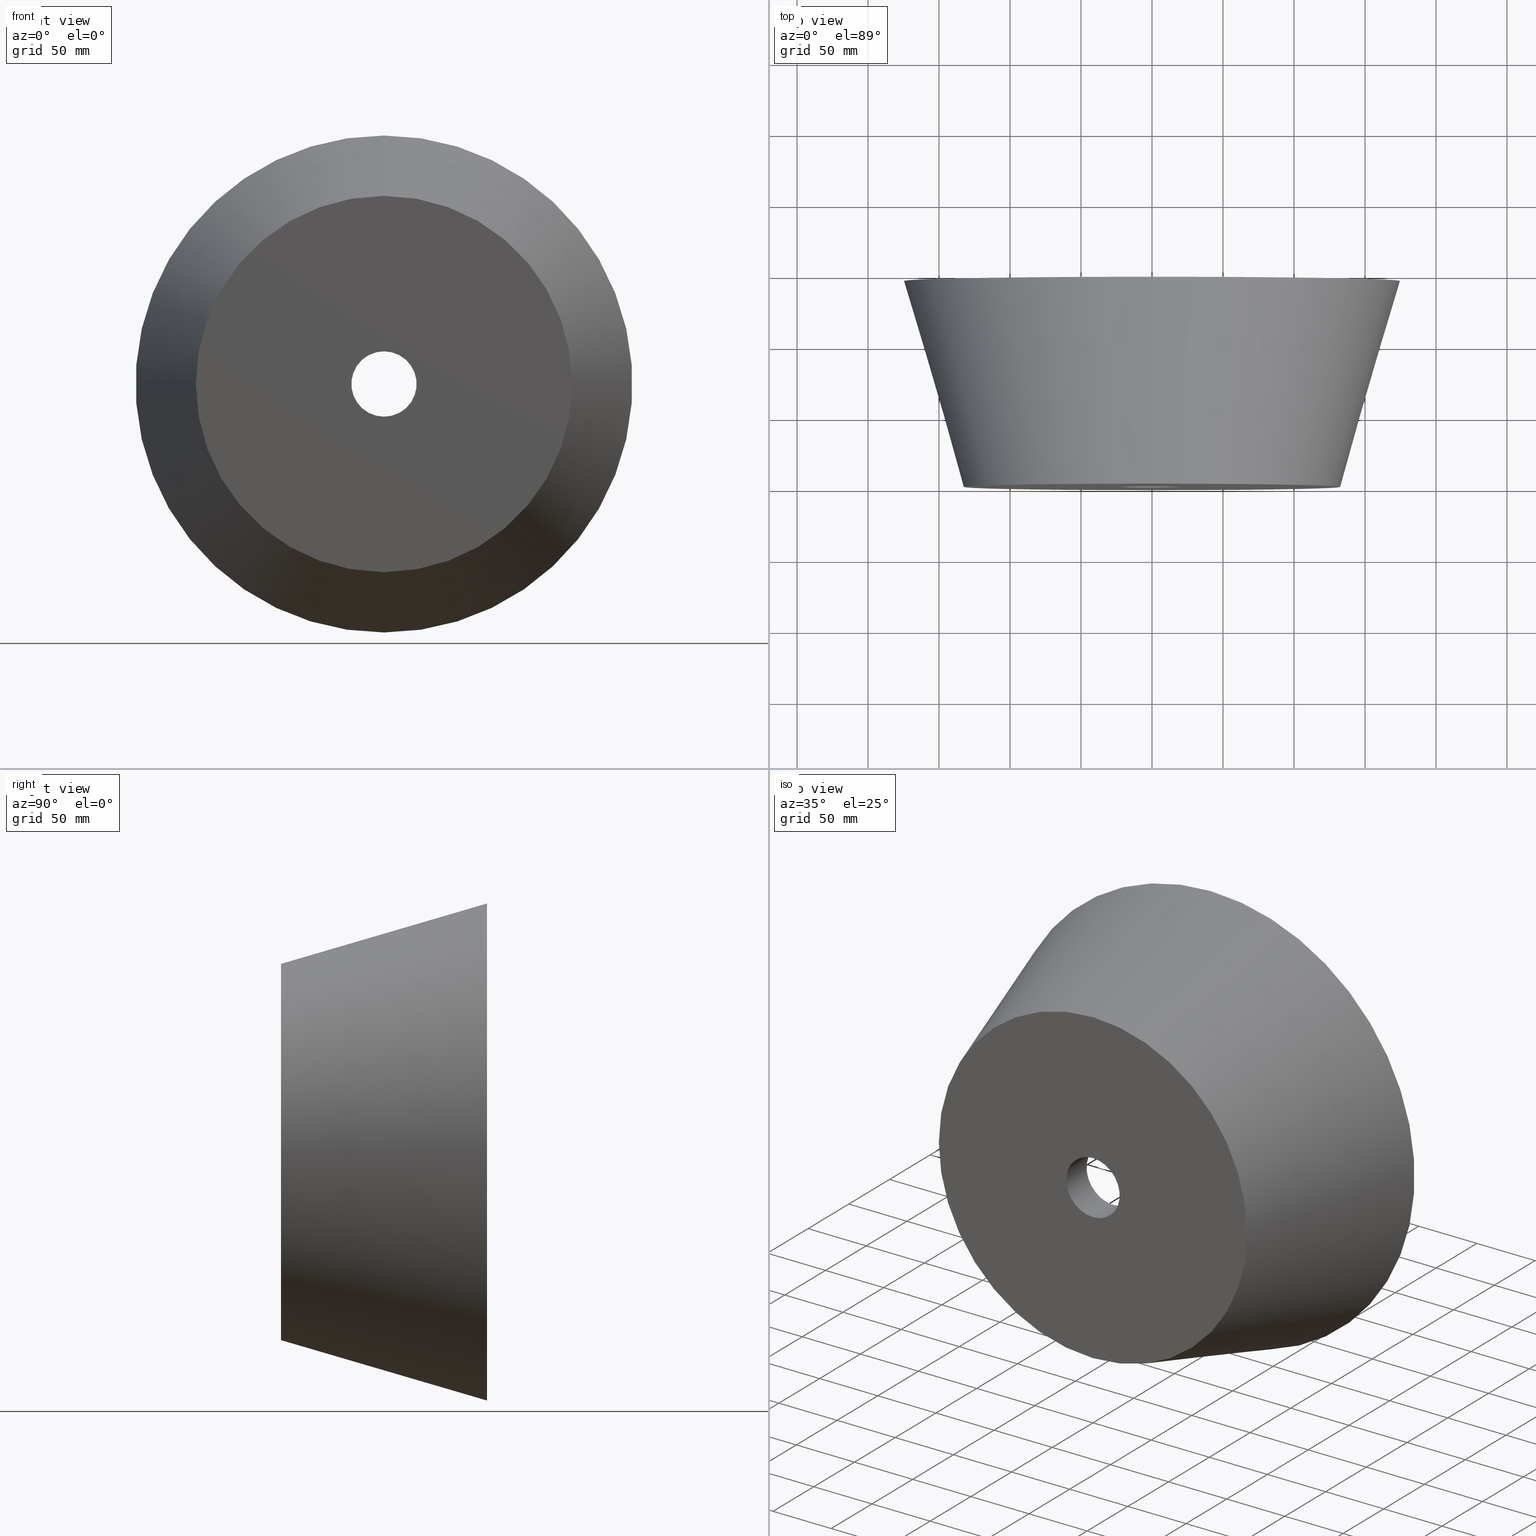
[diagram: canonical four-view strip — front | top / right | iso, engineering-drawing reading convention]
A machine part, canonical four-view strip (front | top / right | iso — engineering-drawing reading convention). The complete STEP part file that produces these views, byte-faithful:
ISO-10303-21;
HEADER;
FILE_DESCRIPTION (( 'STEP AP214' ),
    '1' );
FILE_NAME ('D601.STEP',
    '2018-09-14T08:24:21',
    ( 'User' ),
    ( '' ),
    'SwSTEP 2.0',
    'SolidWorks 2017',
    '' );
FILE_SCHEMA (( 'AUTOMOTIVE_DESIGN' ));
ENDSEC;

DATA;
#1 = EDGE_LOOP ( 'NONE', ( #250, #229 ) ) ;
#2 = ORIENTED_EDGE ( 'NONE', *, *, #331, .T. ) ;
#3 = CARTESIAN_POINT ( 'NONE',  ( 0.0000000000000000000, 25.00000000000001400, 0.0000000000000000000 ) ) ;
#4 = PRODUCT_CONTEXT ( 'NONE', #273, 'mechanical' ) ;
#5 =( GEOMETRIC_REPRESENTATION_CONTEXT ( 3 ) GLOBAL_UNCERTAINTY_ASSIGNED_CONTEXT ( ( #248 ) ) GLOBAL_UNIT_ASSIGNED_CONTEXT ( ( #21, #86, #17 ) ) REPRESENTATION_CONTEXT ( 'NONE', 'WORKASPACE' ) );
#6 = SURFACE_SIDE_STYLE ('',( #25 ) ) ;
#7 = LINE ( 'NONE', #65, #258 ) ;
#8 = FACE_OUTER_BOUND ( 'NONE', #27, .T. ) ;
#9 = AXIS2_PLACEMENT_3D ( 'NONE', #213, #216, #217 ) ;
#10 = VERTEX_POINT ( 'NONE', #46 ) ;
#11 = AXIS2_PLACEMENT_3D ( 'NONE', #272, #89, #288 ) ;
#12 = DIRECTION ( 'NONE',  ( 3.444569382563940100E-017, 0.9596285438852135700, -0.2812704352767004800 ) ) ;
#13 = CYLINDRICAL_SURFACE ( 'NONE', #9, 23.00000000000000000 ) ;
#14 = CIRCLE ( 'NONE', #164, 132.5000000000000000 ) ;
#15 = DIRECTION ( 'NONE',  ( 0.0000000000000000000, 0.0000000000000000000, -1.000000000000000000 ) ) ;
#16 = DIRECTION ( 'NONE',  ( -0.0000000000000000000, -1.000000000000000000, -0.0000000000000000000 ) ) ;
#17 =( NAMED_UNIT ( * ) SI_UNIT ( $, .STERADIAN. ) SOLID_ANGLE_UNIT ( ) );
#18 = AXIS2_PLACEMENT_3D ( 'NONE', #43, #188, #238 ) ;
#19 = CARTESIAN_POINT ( 'NONE',  ( 2.143131898507867900E-014, 144.9999999999999400, -175.0000000000000000 ) ) ;
#20 = VERTEX_POINT ( 'NONE', #88 ) ;
#21 =( LENGTH_UNIT ( ) NAMED_UNIT ( * ) SI_UNIT ( .MILLI., .METRE. ) );
#22 = AXIS2_PLACEMENT_3D ( 'NONE', #41, #177, #15 ) ;
#23 = ADVANCED_FACE ( 'NONE', ( #306 ), #263, .F. ) ;
#24 = CIRCLE ( 'NONE', #68, 175.0000000000000000 ) ;
#25 = SURFACE_STYLE_FILL_AREA ( #67 ) ;
#26 = CARTESIAN_POINT ( 'NONE',  ( 0.0000000000000000000, 33.00000000000006400, 0.0000000000000000000 ) ) ;
#27 = EDGE_LOOP ( 'NONE', ( #322, #58, #275, #116 ) ) ;
#28 = AXIS2_PLACEMENT_3D ( 'NONE', #311, #240, #128 ) ;
#29 = APPLICATION_CONTEXT ( 'automotive_design' ) ;
#30 = CARTESIAN_POINT ( 'NONE',  ( 0.0000000000000000000, 144.9999999999999700, -160.0000000000000600 ) ) ;
#31 = DIRECTION ( 'NONE',  ( 0.0000000000000000000, 0.7071067811865496800, 0.7071067811865453500 ) ) ;
#32 = ADVANCED_BREP_SHAPE_REPRESENTATION ( 'D601', ( #184, #231 ), #40 ) ;
#33 = ORIENTED_EDGE ( 'NONE', *, *, #160, .F. ) ;
#34 = CARTESIAN_POINT ( 'NONE',  ( 2.816687638038912400E-015, 25.00000000000001400, 23.00000000000000000 ) ) ;
#35 = TOROIDAL_SURFACE ( 'NONE', #126, 6.803146923017686200, 160.0000000000002000 ) ;
#36 = PRESENTATION_LAYER_ASSIGNMENT (  '', '', ( #289 ) ) ;
#37 = DIRECTION ( 'NONE',  ( 0.0000000000000000000, -0.0000000000000000000, 1.000000000000000000 ) ) ;
#38 = ORIENTED_EDGE ( 'NONE', *, *, #307, .T. ) ;
#39 = AXIS2_PLACEMENT_3D ( 'NONE', #241, #283, #37 ) ;
#40 =( GEOMETRIC_REPRESENTATION_CONTEXT ( 3 ) GLOBAL_UNCERTAINTY_ASSIGNED_CONTEXT ( ( #47 ) ) GLOBAL_UNIT_ASSIGNED_CONTEXT ( ( #129, #202, #204 ) ) REPRESENTATION_CONTEXT ( 'NONE', 'WORKASPACE' ) );
#41 = CARTESIAN_POINT ( 'NONE',  ( 0.0000000000000000000, 191.1597682761677100, 0.0000000000000000000 ) ) ;
#42 = EDGE_LOOP ( 'NONE', ( #139, #179, #63, #247 ) ) ;
#43 = CARTESIAN_POINT ( 'NONE',  ( 0.0000000000000000000, 144.9999999999999700, 0.0000000000000000000 ) ) ;
#44 = DIRECTION ( 'NONE',  ( 0.0000000000000000000, 0.0000000000000000000, 1.000000000000000000 ) ) ;
#45 = AXIS2_PLACEMENT_3D ( 'NONE', #26, #330, #108 ) ;
#46 = CARTESIAN_POINT ( 'NONE',  ( 2.143131898507867900E-014, 144.9999999999999400, -175.0000000000000000 ) ) ;
#47 = UNCERTAINTY_MEASURE_WITH_UNIT (LENGTH_MEASURE( 1.000000000000000100E-005 ), #129, 'distance_accuracy_value', 'NONE');
#48 = DIRECTION ( 'NONE',  ( -0.0000000000000000000, -1.000000000000000000, -0.0000000000000000000 ) ) ;
#49 = FILL_AREA_STYLE ('',( #112 ) ) ;
#50 = VERTEX_POINT ( 'NONE', #115 ) ;
#51 = EDGE_LOOP ( 'NONE', ( #80, #173, #2, #327 ) ) ;
#52 = PRESENTATION_STYLE_ASSIGNMENT (( #269 ) ) ;
#53 = AXIS2_PLACEMENT_3D ( 'NONE', #329, #225, #97 ) ;
#54 = CARTESIAN_POINT ( 'NONE',  ( 0.0000000000000000000, 33.00000000000006400, 0.0000000000000000000 ) ) ;
#55 = SURFACE_STYLE_USAGE ( .BOTH. , #6 ) ;
#56 = FACE_BOUND ( 'NONE', #237, .T. ) ;
#57 = AXIS2_PLACEMENT_3D ( 'NONE', #176, #148, #259 ) ;
#58 = ORIENTED_EDGE ( 'NONE', *, *, #251, .T. ) ;
#59 = ADVANCED_FACE ( 'NONE', ( #62 ), #76, .T. ) ;
#60 = VECTOR ( 'NONE', #165, 1000.000000000000000 ) ;
#61 = DIRECTION ( 'NONE',  ( 0.0000000000000000000, 0.0000000000000000000, -1.000000000000000000 ) ) ;
#62 = FACE_OUTER_BOUND ( 'NONE', #137, .T. ) ;
#63 = ORIENTED_EDGE ( 'NONE', *, *, #233, .T. ) ;
#64 = DIRECTION ( 'NONE',  ( 1.000000000000000000, 0.0000000000000000000, 0.0000000000000000000 ) ) ;
#65 = CARTESIAN_POINT ( 'NONE',  ( 0.0000000000000000000, 0.0000000000000000000, -23.00000000000000000 ) ) ;
#66 = ORIENTED_EDGE ( 'NONE', *, *, #120, .T. ) ;
#67 = FILL_AREA_STYLE ('',( #102 ) ) ;
#68 = AXIS2_PLACEMENT_3D ( 'NONE', #169, #48, #297 ) ;
#69 = CIRCLE ( 'NONE', #274, 23.00000000000000400 ) ;
#70 = VECTOR ( 'NONE', #31, 1000.000000000000000 ) ;
#71 = EDGE_LOOP ( 'NONE', ( #38, #133 ) ) ;
#72 = SHAPE_DEFINITION_REPRESENTATION ( #310, #32 ) ;
#73 = PRODUCT_RELATED_PRODUCT_CATEGORY ( 'part', '', ( #303 ) ) ;
#74 = CARTESIAN_POINT ( 'NONE',  ( 0.0000000000000000000, 144.9999999999999400, 175.0000000000000000 ) ) ;
#75 =( NAMED_UNIT ( * ) PLANE_ANGLE_UNIT ( ) SI_UNIT ( $, .RADIAN. ) );
#76 = CONICAL_SURFACE ( 'NONE', #305, 175.0000000000000000, 0.2851177351725961400 ) ;
#77 = DIRECTION ( 'NONE',  ( -0.0000000000000000000, -1.000000000000000000, -0.0000000000000000000 ) ) ;
#78 = ADVANCED_FACE ( 'NONE', ( #281 ), #210, .F. ) ;
#79 = EDGE_CURVE ( 'NONE', #253, #286, #270, .T. ) ;
#80 = ORIENTED_EDGE ( 'NONE', *, *, #255, .F. ) ;
#81 = SURFACE_STYLE_FILL_AREA ( #49 ) ;
#82 = ADVANCED_FACE ( 'NONE', ( #56, #212 ), #243, .F. ) ;
#83 = LINE ( 'NONE', #134, #242 ) ;
#84 = CIRCLE ( 'NONE', #57, 23.00000000000000000 ) ;
#85 = DIRECTION ( 'NONE',  ( -1.000000000000000000, 0.0000000000000000000, 0.0000000000000000000 ) ) ;
#86 =( NAMED_UNIT ( * ) PLANE_ANGLE_UNIT ( ) SI_UNIT ( $, .RADIAN. ) );
#87 = EDGE_CURVE ( 'NONE', #98, #90, #190, .T. ) ;
#88 = CARTESIAN_POINT ( 'NONE',  ( 1.169537693185723300E-014, 33.00000000000006400, 31.00000000000000000 ) ) ;
#89 = DIRECTION ( 'NONE',  ( 0.0000000000000000000, 1.000000000000000000, 0.0000000000000000000 ) ) ;
#90 = VERTEX_POINT ( 'NONE', #220 ) ;
#91 = PRODUCT_DEFINITION_FORMATION_WITH_SPECIFIED_SOURCE ( 'ANY', '', #303, .NOT_KNOWN. ) ;
#92 = ADVANCED_FACE ( 'NONE', ( #8 ), #136, .F. ) ;
#93 = AXIS2_PLACEMENT_3D ( 'NONE', #3, #101, #308 ) ;
#94 = ORIENTED_EDGE ( 'NONE', *, *, #87, .T. ) ;
#95 = PRODUCT ( 'D601', 'D601', '', ( #172 ) ) ;
#96 = ORIENTED_EDGE ( 'NONE', *, *, #157, .F. ) ;
#97 = DIRECTION ( 'NONE',  ( 1.000000000000000000, 0.0000000000000000000, 0.0000000000000000000 ) ) ;
#98 = VERTEX_POINT ( 'NONE', #30 ) ;
#99 = ORIENTED_EDGE ( 'NONE', *, *, #79, .T. ) ;
#100 = AXIS2_PLACEMENT_3D ( 'NONE', #152, #85, #135 ) ;
#101 = DIRECTION ( 'NONE',  ( 0.0000000000000000000, 1.000000000000000000, 0.0000000000000000000 ) ) ;
#102 = FILL_AREA_STYLE_COLOUR ( '', #168 ) ;
#103 = EDGE_LOOP ( 'NONE', ( #221, #124 ) ) ;
#104 = TOROIDAL_SURFACE ( 'NONE', #22, 6.803146923017686200, 160.0000000000002000 ) ;
#105 = DIRECTION ( 'NONE',  ( 0.0000000000000000000, 0.0000000000000000000, -1.000000000000000000 ) ) ;
#106 = PRODUCT_DEFINITION ( 'UNKNOWN', '', #91, #256 ) ;
#107 = ORIENTED_EDGE ( 'NONE', *, *, #120, .F. ) ;
#108 = DIRECTION ( 'NONE',  ( 0.0000000000000000000, 0.0000000000000000000, -1.000000000000000000 ) ) ;
#109 =( LENGTH_UNIT ( ) NAMED_UNIT ( * ) SI_UNIT ( .MILLI., .METRE. ) );
#110 = CARTESIAN_POINT ( 'NONE',  ( 0.0000000000000000000, 191.1597682761677100, 0.0000000000000000000 ) ) ;
#111 = VERTEX_POINT ( 'NONE', #254 ) ;
#112 = FILL_AREA_STYLE_COLOUR ( '', #313 ) ;
#113 = EDGE_CURVE ( 'NONE', #286, #20, #200, .T. ) ;
#114 = PRESENTATION_LAYER_ASSIGNMENT (  '', '', ( #236 ) ) ;
#115 = CARTESIAN_POINT ( 'NONE',  ( 0.0000000000000000000, 1.040834085586084300E-014, -23.00000000000000400 ) ) ;
#116 = ORIENTED_EDGE ( 'NONE', *, *, #113, .F. ) ;
#117 = VERTEX_POINT ( 'NONE', #161 ) ;
#118 = CARTESIAN_POINT ( 'NONE',  ( 0.0000000000000000000, 1.040834085586084300E-014, 0.0000000000000000000 ) ) ;
#119 = CARTESIAN_POINT ( 'NONE',  ( 0.0000000000000000000, 144.9999999999999400, 175.0000000000000000 ) ) ;
#120 = EDGE_CURVE ( 'NONE', #90, #20, #278, .T. ) ;
#121 = SURFACE_SIDE_STYLE ('',( #81 ) ) ;
#122 = ADVANCED_FACE ( 'NONE', ( #131 ), #104, .F. ) ;
#123 = ORIENTED_EDGE ( 'NONE', *, *, #307, .F. ) ;
#124 = ORIENTED_EDGE ( 'NONE', *, *, #255, .T. ) ;
#125 = FACE_OUTER_BOUND ( 'NONE', #51, .T. ) ;
#126 = AXIS2_PLACEMENT_3D ( 'NONE', #110, #16, #319 ) ;
#127 = APPLICATION_PROTOCOL_DEFINITION ( 'draft international standard', 'automotive_design', 1998, #273 ) ;
#128 = DIRECTION ( 'NONE',  ( 0.0000000000000000000, 0.0000000000000000000, -1.000000000000000000 ) ) ;
#129 =( LENGTH_UNIT ( ) NAMED_UNIT ( * ) SI_UNIT ( .MILLI., .METRE. ) );
#130 = LINE ( 'NONE', #244, #60 ) ;
#131 = FACE_OUTER_BOUND ( 'NONE', #262, .T. ) ;
#132 = FACE_OUTER_BOUND ( 'NONE', #257, .T. ) ;
#133 = ORIENTED_EDGE ( 'NONE', *, *, #170, .T. ) ;
#134 = CARTESIAN_POINT ( 'NONE',  ( 2.816687638038912400E-015, 25.00000000000001400, -23.00000000000000000 ) ) ;
#135 = DIRECTION ( 'NONE',  ( 0.0000000000000000000, 0.0000000000000000000, 1.000000000000000000 ) ) ;
#136 = CONICAL_SURFACE ( 'NONE', #181, 23.00000000000000000, 0.7853981633974452800 ) ;
#137 = EDGE_LOOP ( 'NONE', ( #282, #123, #214, #226 ) ) ;
#138 = DIRECTION ( 'NONE',  ( -0.0000000000000000000, -1.000000000000000000, -0.0000000000000000000 ) ) ;
#139 = ORIENTED_EDGE ( 'NONE', *, *, #196, .F. ) ;
#140 = DIRECTION ( 'NONE',  ( 0.0000000000000000000, -1.000000000000000000, -0.0000000000000000000 ) ) ;
#141 = EDGE_CURVE ( 'NONE', #284, #10, #144, .T. ) ;
#142 = DIRECTION ( 'NONE',  ( -1.224646799147353200E-016, 0.0000000000000000000, -1.000000000000000000 ) ) ;
#143 = VECTOR ( 'NONE', #261, 1000.000000000000100 ) ;
#144 = CIRCLE ( 'NONE', #218, 175.0000000000000000 ) ;
#145 = ORIENTED_EDGE ( 'NONE', *, *, #205, .F. ) ;
#146 = APPLICATION_PROTOCOL_DEFINITION ( 'draft international standard', 'automotive_design', 1998, #302 ) ;
#147 = PRODUCT_RELATED_PRODUCT_CATEGORY ( 'part', '', ( #95 ) ) ;
#148 = DIRECTION ( 'NONE',  ( -0.0000000000000000000, -1.000000000000000000, -0.0000000000000000000 ) ) ;
#149 = FACE_OUTER_BOUND ( 'NONE', #298, .T. ) ;
#150 = CIRCLE ( 'NONE', #300, 160.0000000000002000 ) ;
#151 = AXIS2_PLACEMENT_3D ( 'NONE', #219, #314, #61 ) ;
#152 = CARTESIAN_POINT ( 'NONE',  ( 0.0000000000000000000, 191.1597682761677100, -6.803146923017686200 ) ) ;
#153 = DIRECTION ( 'NONE',  ( -0.0000000000000000000, -1.000000000000000000, -0.0000000000000000000 ) ) ;
#154 = DIRECTION ( 'NONE',  ( -0.0000000000000000000, -1.000000000000000000, -0.0000000000000000000 ) ) ;
#155 = AXIS2_PLACEMENT_3D ( 'NONE', #193, #140, #287 ) ;
#156 = EDGE_LOOP ( 'NONE', ( #171, #99, #167, #107 ) ) ;
#157 = EDGE_CURVE ( 'NONE', #286, #253, #84, .T. ) ;
#158 = DIRECTION ( 'NONE',  ( -0.0000000000000000000, -1.000000000000000000, -0.0000000000000000000 ) ) ;
#159 = AXIS2_PLACEMENT_3D ( 'NONE', #317, #154, #192 ) ;
#160 = EDGE_CURVE ( 'NONE', #312, #284, #230, .T. ) ;
#161 = CARTESIAN_POINT ( 'NONE',  ( 1.959434878635766200E-014, 144.9999999999999700, 160.0000000000000600 ) ) ;
#162 = CLOSED_SHELL ( 'NONE', ( #92, #326, #285, #198, #122, #186, #59, #82, #23, #78 ) ) ;
#163 = CARTESIAN_POINT ( 'NONE',  ( 0.0000000000000000000, 25.00000000000001400, -23.00000000000000000 ) ) ;
#164 = AXIS2_PLACEMENT_3D ( 'NONE', #290, #138, #105 ) ;
#165 = DIRECTION ( 'NONE',  ( -0.0000000000000000000, -1.000000000000000000, -0.0000000000000000000 ) ) ;
#166 = DIRECTION ( 'NONE',  ( 0.0000000000000000000, 0.0000000000000000000, -1.000000000000000000 ) ) ;
#167 = ORIENTED_EDGE ( 'NONE', *, *, #113, .T. ) ;
#168 = COLOUR_RGB ( '',1.000000000000000000, 1.000000000000000000, 1.000000000000000000 ) ;
#169 = CARTESIAN_POINT ( 'NONE',  ( 0.0000000000000000000, 144.9999999999999400, 0.0000000000000000000 ) ) ;
#170 = EDGE_CURVE ( 'NONE', #318, #312, #14, .T. ) ;
#171 = ORIENTED_EDGE ( 'NONE', *, *, #251, .F. ) ;
#172 = PRODUCT_CONTEXT ( 'NONE', #249, 'mechanical' ) ;
#173 = ORIENTED_EDGE ( 'NONE', *, *, #175, .T. ) ;
#174 = APPLICATION_PROTOCOL_DEFINITION ( 'draft international standard', 'automotive_design', 1998, #249 ) ;
#175 = EDGE_CURVE ( 'NONE', #117, #20, #150, .T. ) ;
#176 = CARTESIAN_POINT ( 'NONE',  ( 0.0000000000000000000, 25.00000000000001400, 0.0000000000000000000 ) ) ;
#177 = DIRECTION ( 'NONE',  ( -0.0000000000000000000, -1.000000000000000000, -0.0000000000000000000 ) ) ;
#178 = ORIENTED_EDGE ( 'NONE', *, *, #175, .F. ) ;
#179 = ORIENTED_EDGE ( 'NONE', *, *, #79, .F. ) ;
#180 = DIRECTION ( 'NONE',  ( -0.0000000000000000000, -1.000000000000000000, -0.0000000000000000000 ) ) ;
#181 = AXIS2_PLACEMENT_3D ( 'NONE', #187, #239, #299 ) ;
#182 = EDGE_CURVE ( 'NONE', #50, #111, #69, .T. ) ;
#183 = ORIENTED_EDGE ( 'NONE', *, *, #191, .T. ) ;
#184 = MANIFOLD_SOLID_BREP ( 'Rotation1', #162 ) ;
#185 = CIRCLE ( 'NONE', #159, 23.00000000000000400 ) ;
#186 = ADVANCED_FACE ( 'NONE', ( #294, #199 ), #296, .F. ) ;
#187 = CARTESIAN_POINT ( 'NONE',  ( 0.0000000000000000000, 25.00000000000001400, 0.0000000000000000000 ) ) ;
#188 = DIRECTION ( 'NONE',  ( -0.0000000000000000000, -1.000000000000000000, -0.0000000000000000000 ) ) ;
#189 =( GEOMETRIC_REPRESENTATION_CONTEXT ( 3 ) GLOBAL_UNCERTAINTY_ASSIGNED_CONTEXT ( ( #203 ) ) GLOBAL_UNIT_ASSIGNED_CONTEXT ( ( #109, #75, #252 ) ) REPRESENTATION_CONTEXT ( 'NONE', 'WORKASPACE' ) );
#190 = CIRCLE ( 'NONE', #100, 160.0000000000002000 ) ;
#191 = EDGE_CURVE ( 'NONE', #318, #10, #195, .T. ) ;
#192 = DIRECTION ( 'NONE',  ( 0.0000000000000000000, 0.0000000000000000000, -1.000000000000000000 ) ) ;
#193 = CARTESIAN_POINT ( 'NONE',  ( -175.0000000000000000, 144.9999999999999700, 0.0000000000000000000 ) ) ;
#194 = ORIENTED_EDGE ( 'NONE', *, *, #223, .F. ) ;
#195 = LINE ( 'NONE', #19, #277 ) ;
#196 = EDGE_CURVE ( 'NONE', #286, #111, #130, .T. ) ;
#197 = DIRECTION ( 'NONE',  ( 1.000000000000000000, 0.0000000000000000000, -1.224646799147353200E-016 ) ) ;
#198 = ADVANCED_FACE ( 'NONE', ( #125 ), #35, .F. ) ;
#199 = FACE_BOUND ( 'NONE', #103, .T. ) ;
#200 = LINE ( 'NONE', #211, #70 ) ;
#201 = CIRCLE ( 'NONE', #28, 132.5000000000000000 ) ;
#202 =( NAMED_UNIT ( * ) PLANE_ANGLE_UNIT ( ) SI_UNIT ( $, .RADIAN. ) );
#203 = UNCERTAINTY_MEASURE_WITH_UNIT (LENGTH_MEASURE( 1.000000000000000100E-005 ), #109, 'distance_accuracy_value', 'NONE');
#204 =( NAMED_UNIT ( * ) SI_UNIT ( $, .STERADIAN. ) SOLID_ANGLE_UNIT ( ) );
#205 = EDGE_CURVE ( 'NONE', #111, #50, #185, .T. ) ;
#206 = ORIENTED_EDGE ( 'NONE', *, *, #182, .F. ) ;
#207 = APPLICATION_PROTOCOL_DEFINITION ( 'draft international standard', 'automotive_design', 1998, #29 ) ;
#208 = MECHANICAL_DESIGN_GEOMETRIC_PRESENTATION_REPRESENTATION (  '', ( #289 ), #189 ) ;
#209 = DIRECTION ( 'NONE',  ( 0.0000000000000000000, 1.000000000000000000, 0.0000000000000000000 ) ) ;
#210 = CONICAL_SURFACE ( 'NONE', #93, 23.00000000000000000, 0.7853981633974452800 ) ;
#211 = CARTESIAN_POINT ( 'NONE',  ( 0.0000000000000000000, 25.00000000000001400, 23.00000000000000000 ) ) ;
#212 = FACE_OUTER_BOUND ( 'NONE', #71, .T. ) ;
#213 = CARTESIAN_POINT ( 'NONE',  ( 0.0000000000000000000, 0.0000000000000000000, 0.0000000000000000000 ) ) ;
#214 = ORIENTED_EDGE ( 'NONE', *, *, #160, .T. ) ;
#215 = PRODUCT_DEFINITION_SHAPE ( 'NONE', 'NONE',  #106 ) ;
#216 = DIRECTION ( 'NONE',  ( -0.0000000000000000000, -1.000000000000000000, -0.0000000000000000000 ) ) ;
#217 = DIRECTION ( 'NONE',  ( 0.0000000000000000000, 0.0000000000000000000, -1.000000000000000000 ) ) ;
#218 = AXIS2_PLACEMENT_3D ( 'NONE', #260, #235, #304 ) ;
#219 = CARTESIAN_POINT ( 'NONE',  ( 0.0000000000000000000, 25.00000000000001400, 0.0000000000000000000 ) ) ;
#220 = CARTESIAN_POINT ( 'NONE',  ( 0.0000000000000000000, 33.00000000000006400, -31.00000000000000000 ) ) ;
#221 = ORIENTED_EDGE ( 'NONE', *, *, #223, .T. ) ;
#222 = CIRCLE ( 'NONE', #45, 31.00000000000000000 ) ;
#223 = EDGE_CURVE ( 'NONE', #98, #117, #324, .T. ) ;
#224 = DIRECTION ( 'NONE',  ( 0.0000000000000000000, 0.0000000000000000000, 1.000000000000000000 ) ) ;
#225 = DIRECTION ( 'NONE',  ( 0.0000000000000000000, 0.0000000000000000000, 1.000000000000000000 ) ) ;
#226 = ORIENTED_EDGE ( 'NONE', *, *, #141, .T. ) ;
#227 = DIRECTION ( 'NONE',  ( 8.659560562354907000E-017, 0.7071067811865496800, -0.7071067811865453500 ) ) ;
#228 = CARTESIAN_POINT ( 'NONE',  ( 8.331452103402774300E-016, 191.1597682761677100, 6.803146923017686200 ) ) ;
#229 = ORIENTED_EDGE ( 'NONE', *, *, #328, .F. ) ;
#230 = LINE ( 'NONE', #74, #143 ) ;
#231 = AXIS2_PLACEMENT_3D ( 'NONE', #291, #44, #64 ) ;
#232 = CARTESIAN_POINT ( 'NONE',  ( 0.0000000000000000000, 0.0000000000000000000, 0.0000000000000000000 ) ) ;
#233 = EDGE_CURVE ( 'NONE', #253, #50, #7, .T. ) ;
#234 = ORIENTED_EDGE ( 'NONE', *, *, #196, .T. ) ;
#235 = DIRECTION ( 'NONE',  ( -0.0000000000000000000, -1.000000000000000000, -0.0000000000000000000 ) ) ;
#236 = STYLED_ITEM ( 'NONE', ( #279 ), #184 ) ;
#237 = EDGE_LOOP ( 'NONE', ( #206, #145 ) ) ;
#238 = DIRECTION ( 'NONE',  ( 0.0000000000000000000, 0.0000000000000000000, -1.000000000000000000 ) ) ;
#239 = DIRECTION ( 'NONE',  ( 0.0000000000000000000, 1.000000000000000000, 0.0000000000000000000 ) ) ;
#240 = DIRECTION ( 'NONE',  ( -0.0000000000000000000, -1.000000000000000000, -0.0000000000000000000 ) ) ;
#241 = CARTESIAN_POINT ( 'NONE',  ( -23.00000000000000400, 3.469446951953614200E-015, 0.0000000000000000000 ) ) ;
#242 = VECTOR ( 'NONE', #227, 1000.000000000000000 ) ;
#243 = PLANE ( 'NONE',  #39 ) ;
#244 = CARTESIAN_POINT ( 'NONE',  ( 2.816687638038912400E-015, 0.0000000000000000000, 23.00000000000000000 ) ) ;
#245 = DIRECTION ( 'NONE',  ( 0.0000000000000000000, 0.0000000000000000000, -1.000000000000000000 ) ) ;
#246 = AXIS2_PLACEMENT_3D ( 'NONE', #232, #77, #316 ) ;
#247 = ORIENTED_EDGE ( 'NONE', *, *, #182, .T. ) ;
#248 = UNCERTAINTY_MEASURE_WITH_UNIT (LENGTH_MEASURE( 1.000000000000000100E-005 ), #21, 'distance_accuracy_value', 'NONE');
#249 = APPLICATION_CONTEXT ( 'automotive_design' ) ;
#250 = ORIENTED_EDGE ( 'NONE', *, *, #141, .F. ) ;
#251 = EDGE_CURVE ( 'NONE', #253, #90, #83, .T. ) ;
#252 =( NAMED_UNIT ( * ) SI_UNIT ( $, .STERADIAN. ) SOLID_ANGLE_UNIT ( ) );
#253 = VERTEX_POINT ( 'NONE', #163 ) ;
#254 = CARTESIAN_POINT ( 'NONE',  ( 2.816687638038913100E-015, 1.040834085586084300E-014, 23.00000000000000400 ) ) ;
#255 = EDGE_CURVE ( 'NONE', #117, #98, #301, .T. ) ;
#256 = PRODUCT_DEFINITION_CONTEXT ( 'detailed design', #302, 'design' ) ;
#257 = EDGE_LOOP ( 'NONE', ( #323, #183, #265, #33 ) ) ;
#258 = VECTOR ( 'NONE', #180, 1000.000000000000000 ) ;
#259 = DIRECTION ( 'NONE',  ( 0.0000000000000000000, 0.0000000000000000000, -1.000000000000000000 ) ) ;
#260 = CARTESIAN_POINT ( 'NONE',  ( 0.0000000000000000000, 144.9999999999999400, 0.0000000000000000000 ) ) ;
#261 = DIRECTION ( 'NONE',  ( 0.0000000000000000000, 0.9596285438852135700, 0.2812704352767004800 ) ) ;
#262 = EDGE_LOOP ( 'NONE', ( #178, #194, #94, #66 ) ) ;
#263 = CYLINDRICAL_SURFACE ( 'NONE', #246, 23.00000000000000000 ) ;
#264 = AXIS2_PLACEMENT_3D ( 'NONE', #54, #153, #321 ) ;
#265 = ORIENTED_EDGE ( 'NONE', *, *, #328, .T. ) ;
#266 = PRODUCT_DEFINITION_FORMATION_WITH_SPECIFIED_SOURCE ( 'ANY', '', #95, .NOT_KNOWN. ) ;
#267 = PRODUCT_DEFINITION_CONTEXT ( 'detailed design', #29, 'design' ) ;
#268 = MECHANICAL_DESIGN_GEOMETRIC_PRESENTATION_REPRESENTATION (  '', ( #236 ), #5 ) ;
#269 = SURFACE_STYLE_USAGE ( .BOTH. , #121 ) ;
#270 = CIRCLE ( 'NONE', #151, 23.00000000000000000 ) ;
#271 = CARTESIAN_POINT ( 'NONE',  ( 0.0000000000000000000, -3.469446951953614200E-015, 132.5000000000000000 ) ) ;
#272 = CARTESIAN_POINT ( 'NONE',  ( 0.0000000000000000000, 144.9999999999999400, 0.0000000000000000000 ) ) ;
#273 = APPLICATION_CONTEXT ( 'automotive_design' ) ;
#274 = AXIS2_PLACEMENT_3D ( 'NONE', #118, #309, #166 ) ;
#275 = ORIENTED_EDGE ( 'NONE', *, *, #331, .F. ) ;
#276 = CARTESIAN_POINT ( 'NONE',  ( 1.882894453689055400E-014, -3.469446951953614200E-015, -132.5000000000000000 ) ) ;
#277 = VECTOR ( 'NONE', #12, 1000.000000000000100 ) ;
#278 = CIRCLE ( 'NONE', #264, 31.00000000000000000 ) ;
#279 = PRESENTATION_STYLE_ASSIGNMENT (( #55 ) ) ;
#280 = ORIENTED_EDGE ( 'NONE', *, *, #205, .T. ) ;
#281 = FACE_OUTER_BOUND ( 'NONE', #156, .T. ) ;
#282 = ORIENTED_EDGE ( 'NONE', *, *, #191, .F. ) ;
#283 = DIRECTION ( 'NONE',  ( 0.0000000000000000000, 1.000000000000000000, 0.0000000000000000000 ) ) ;
#284 = VERTEX_POINT ( 'NONE', #119 ) ;
#285 = ADVANCED_FACE ( 'NONE', ( #132 ), #295, .T. ) ;
#286 = VERTEX_POINT ( 'NONE', #34 ) ;
#287 = DIRECTION ( 'NONE',  ( 0.0000000000000000000, 0.0000000000000000000, -1.000000000000000000 ) ) ;
#288 = DIRECTION ( 'NONE',  ( 0.0000000000000000000, 0.0000000000000000000, 1.000000000000000000 ) ) ;
#289 = STYLED_ITEM ( 'NONE', ( #52 ), #32 ) ;
#290 = CARTESIAN_POINT ( 'NONE',  ( 0.0000000000000000000, -3.469446951953614200E-015, 0.0000000000000000000 ) ) ;
#291 = CARTESIAN_POINT ( 'NONE',  ( 0.0000000000000000000, 0.0000000000000000000, 0.0000000000000000000 ) ) ;
#292 = ORIENTED_EDGE ( 'NONE', *, *, #233, .F. ) ;
#293 = PRODUCT_DEFINITION ( 'UNKNOWN', '', #266, #267 ) ;
#294 = FACE_OUTER_BOUND ( 'NONE', #1, .T. ) ;
#295 = CONICAL_SURFACE ( 'NONE', #11, 175.0000000000000000, 0.2851177351725961400 ) ;
#296 = PLANE ( 'NONE',  #155 ) ;
#297 = DIRECTION ( 'NONE',  ( 0.0000000000000000000, 0.0000000000000000000, -1.000000000000000000 ) ) ;
#298 = EDGE_LOOP ( 'NONE', ( #96, #234, #280, #292 ) ) ;
#299 = DIRECTION ( 'NONE',  ( 0.0000000000000000000, 0.0000000000000000000, 1.000000000000000000 ) ) ;
#300 = AXIS2_PLACEMENT_3D ( 'NONE', #228, #197, #142 ) ;
#301 = CIRCLE ( 'NONE', #320, 159.9999999999999700 ) ;
#302 = APPLICATION_CONTEXT ( 'automotive_design' ) ;
#303 = PRODUCT ( 'D601', 'D601', '', ( #4 ) ) ;
#304 = DIRECTION ( 'NONE',  ( 0.0000000000000000000, 0.0000000000000000000, -1.000000000000000000 ) ) ;
#305 = AXIS2_PLACEMENT_3D ( 'NONE', #315, #209, #224 ) ;
#306 = FACE_OUTER_BOUND ( 'NONE', #42, .T. ) ;
#307 = EDGE_CURVE ( 'NONE', #312, #318, #201, .T. ) ;
#308 = DIRECTION ( 'NONE',  ( 0.0000000000000000000, 0.0000000000000000000, 1.000000000000000000 ) ) ;
#309 = DIRECTION ( 'NONE',  ( -0.0000000000000000000, -1.000000000000000000, -0.0000000000000000000 ) ) ;
#310 = PRODUCT_DEFINITION_SHAPE ( 'NONE', 'NONE',  #293 ) ;
#311 = CARTESIAN_POINT ( 'NONE',  ( 0.0000000000000000000, -3.469446951953614200E-015, 0.0000000000000000000 ) ) ;
#312 = VERTEX_POINT ( 'NONE', #271 ) ;
#313 = COLOUR_RGB ( '',1.000000000000000000, 1.000000000000000000, 1.000000000000000000 ) ;
#314 = DIRECTION ( 'NONE',  ( -0.0000000000000000000, -1.000000000000000000, -0.0000000000000000000 ) ) ;
#315 = CARTESIAN_POINT ( 'NONE',  ( 0.0000000000000000000, 144.9999999999999400, 0.0000000000000000000 ) ) ;
#316 = DIRECTION ( 'NONE',  ( 0.0000000000000000000, 0.0000000000000000000, -1.000000000000000000 ) ) ;
#317 = CARTESIAN_POINT ( 'NONE',  ( 0.0000000000000000000, 1.040834085586084300E-014, 0.0000000000000000000 ) ) ;
#318 = VERTEX_POINT ( 'NONE', #276 ) ;
#319 = DIRECTION ( 'NONE',  ( 0.0000000000000000000, 0.0000000000000000000, -1.000000000000000000 ) ) ;
#320 = AXIS2_PLACEMENT_3D ( 'NONE', #325, #158, #245 ) ;
#321 = DIRECTION ( 'NONE',  ( 0.0000000000000000000, 0.0000000000000000000, -1.000000000000000000 ) ) ;
#322 = ORIENTED_EDGE ( 'NONE', *, *, #157, .T. ) ;
#323 = ORIENTED_EDGE ( 'NONE', *, *, #170, .F. ) ;
#324 = CIRCLE ( 'NONE', #18, 159.9999999999999700 ) ;
#325 = CARTESIAN_POINT ( 'NONE',  ( 0.0000000000000000000, 144.9999999999999700, 0.0000000000000000000 ) ) ;
#326 = ADVANCED_FACE ( 'NONE', ( #149 ), #13, .F. ) ;
#327 = ORIENTED_EDGE ( 'NONE', *, *, #87, .F. ) ;
#328 = EDGE_CURVE ( 'NONE', #10, #284, #24, .T. ) ;
#329 = CARTESIAN_POINT ( 'NONE',  ( 0.0000000000000000000, 0.0000000000000000000, 0.0000000000000000000 ) ) ;
#330 = DIRECTION ( 'NONE',  ( -0.0000000000000000000, -1.000000000000000000, -0.0000000000000000000 ) ) ;
#331 = EDGE_CURVE ( 'NONE', #20, #90, #222, .T. ) ;
ENDSEC;
END-ISO-10303-21;
